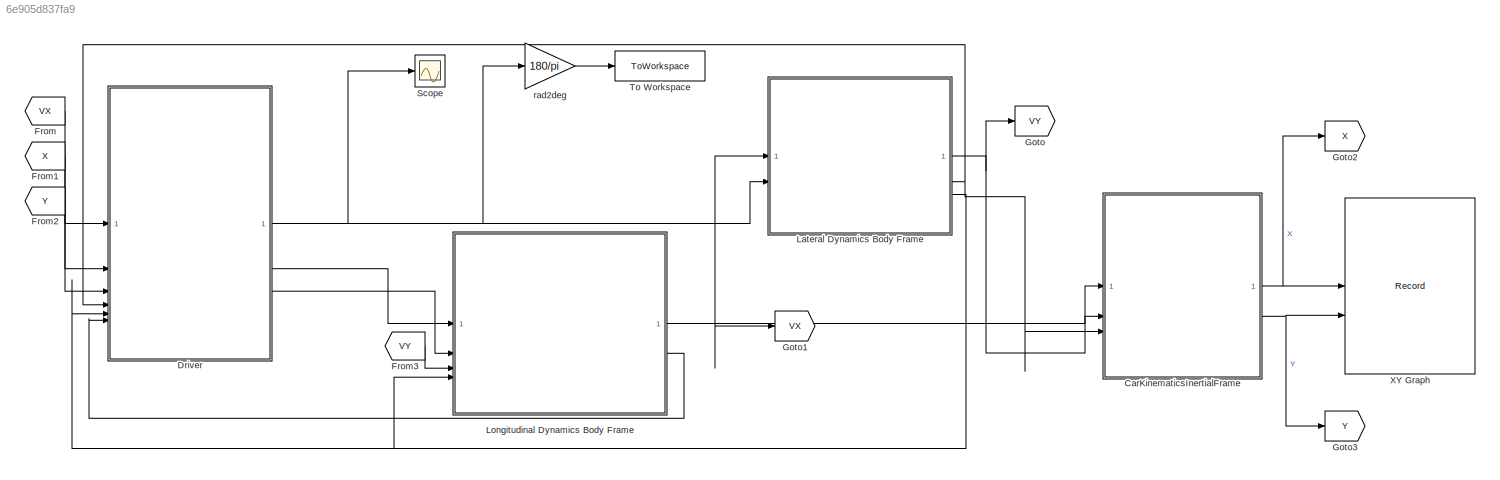
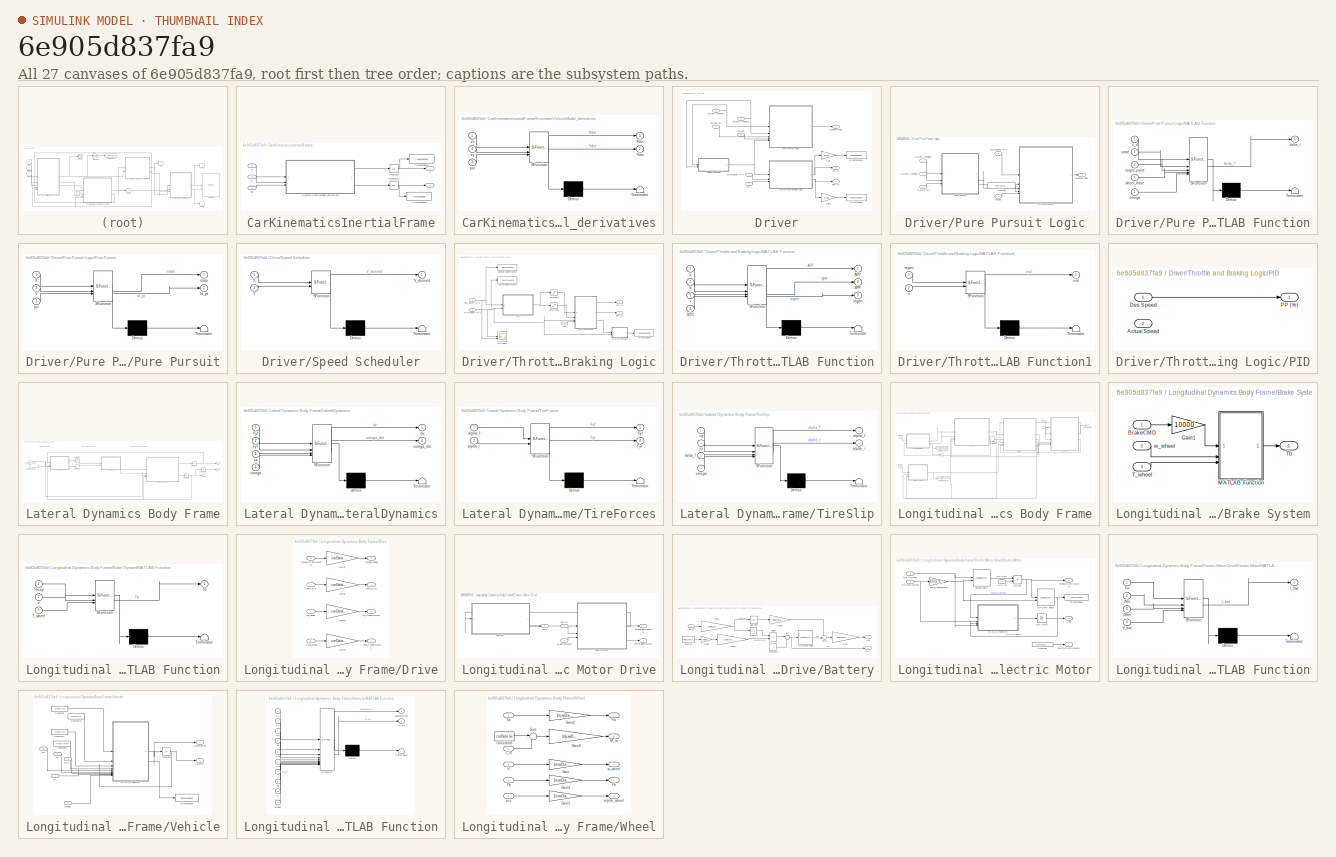
[diagram: thumbnail index - all 27 canvases of the model, root first then tree order]
MODEL slx_6e905d837fa9
KIND model
CONFIG AbsTol = auto
CONFIG EnableMultiTasking = off
CONFIG FixedStep = auto
CONFIG MaxStep = auto
CONFIG MinStep = auto
CONFIG RelTol = 1e-3
CONFIG SampleTimeConstraint = Unconstrained
CONFIG SolverName = VariableStepAuto
CONFIG StartTime = 0.0
CONFIG StopTime = 10.0
BLOCK [SubSystem] CarKinematicsInertialFrame
BLOCK [Integrator] CarKinematicsInertialFrame/Integrator
  InitialCondition = carData.init.X0
BLOCK [Integrator] CarKinematicsInertialFrame/Integrator1
  InitialCondition = carData.init.Y0
BLOCK [SubSystem] CarKinematicsInertialFrame/KinematicVehicleModel_derivatives
  ErrorFcn = Stateflow.Translate.translate
  PermitHierarchicalResolution = ExplicitOnly
  SFBlockType = MATLAB Function
  TreatAsAtomicUnit = on
BLOCK [Demux] CarKinematicsInertialFrame/KinematicVehicleModel_derivatives/ Demux 
  Outputs = 1
BLOCK [S-Function] CarKinematicsInertialFrame/KinematicVehicleModel_derivatives/ SFunction 
  EnableBusSupport = on
  FunctionName = sf_sfun
  PortCounts = [3 3]
  SFcnIsStateOwnerBlock = off
  SFunctionDeploymentMode = off
  Tag = Stateflow S-Function 6
BLOCK [Terminator] CarKinematicsInertialFrame/KinematicVehicleModel_derivatives/ Terminator 
BLOCK [Outport] CarKinematicsInertialFrame/KinematicVehicleModel_derivatives/Xdot
BLOCK [Outport] CarKinematicsInertialFrame/KinematicVehicleModel_derivatives/Ydot
  Port = 2
BLOCK [Inport] CarKinematicsInertialFrame/KinematicVehicleModel_derivatives/psi
  Port = 3
BLOCK [Inport] CarKinematicsInertialFrame/KinematicVehicleModel_derivatives/vx
BLOCK [Inport] CarKinematicsInertialFrame/KinematicVehicleModel_derivatives/vy
  Port = 2
BLOCK [ToWorkspace] CarKinematicsInertialFrame/To Workspace
  FixptAsFi = on
  MaxDataPoints = inf
  SampleTime = -1
  SaveFormat = Timeseries
  VariableName = X
BLOCK [ToWorkspace] CarKinematicsInertialFrame/To Workspace1
  FixptAsFi = on
  MaxDataPoints = inf
  SampleTime = -1
  SaveFormat = Timeseries
  VariableName = Y
BLOCK [Outport] CarKinematicsInertialFrame/X
BLOCK [Outport] CarKinematicsInertialFrame/Y
  Port = 2
BLOCK [Inport] CarKinematicsInertialFrame/psi
  Port = 3
BLOCK [Inport] CarKinematicsInertialFrame/vx
BLOCK [Inport] CarKinematicsInertialFrame/vy
  Port = 2
BLOCK [SubSystem] Driver
BLOCK [Outport] Driver/APP (%)
  Port = 2
BLOCK [Inport] Driver/Actual Speed (m//s)
BLOCK [Outport] Driver/BPP (%)
  Port = 3
BLOCK [Inport] Driver/Current Psi
  Port = 4
BLOCK [Inport] Driver/Current X Position
  Port = 2
BLOCK [Inport] Driver/Current Y Position
  Port = 3
BLOCK [Gain] Driver/Gain
  Gain = 1/100
BLOCK [Gain] Driver/Gain1
  Gain = 1/100
BLOCK [Inport] Driver/Omega
  Port = 5
BLOCK [SubSystem] Driver/Pure Pursuit Logic
BLOCK [Inport] Driver/Pure Pursuit Logic/Actual Speed (m//s)
  Port = 5
BLOCK [Constant] Driver/Pure Pursuit Logic/Constant
  Value = carData.lr + carData.lf
BLOCK [Inport] Driver/Pure Pursuit Logic/Current Psi
  Port = 3
BLOCK [Inport] Driver/Pure Pursuit Logic/Current X Position
BLOCK [Inport] Driver/Pure Pursuit Logic/Current Y Position
  Port = 2
BLOCK [SubSystem] Driver/Pure Pursuit Logic/MATLAB Function
  ErrorFcn = Stateflow.Translate.translate
  PermitHierarchicalResolution = ExplicitOnly
  SFBlockType = MATLAB Function
  TreatAsAtomicUnit = on
BLOCK [Demux] Driver/Pure Pursuit Logic/MATLAB Function/ Demux 
  Outputs = 1
BLOCK [S-Function] Driver/Pure Pursuit Logic/MATLAB Function/ SFunction 
  EnableBusSupport = off
  FunctionName = sf_sfun
  PortCounts = [5 2]
  SFcnIsStateOwnerBlock = off
  SFunctionDeploymentMode = off
  Tag = Stateflow S-Function 5
BLOCK [Terminator] Driver/Pure Pursuit Logic/MATLAB Function/ Terminator 
BLOCK [Outport] Driver/Pure Pursuit Logic/MATLAB Function/delta_f
BLOCK [Inport] Driver/Pure Pursuit Logic/MATLAB Function/omega
  Port = 5
BLOCK [Inport] Driver/Pure Pursuit Logic/MATLAB Function/state
  Port = 2
BLOCK [Inport] Driver/Pure Pursuit Logic/MATLAB Function/target_point
  Port = 3
BLOCK [Inport] Driver/Pure Pursuit Logic/MATLAB Function/v_d
BLOCK [Inport] Driver/Pure Pursuit Logic/MATLAB Function/wheel_base
  Port = 4
BLOCK [SubSystem] Driver/Pure Pursuit Logic/Pure Pursuit
  ErrorFcn = Stateflow.Translate.translate
  PermitHierarchicalResolution = ExplicitOnly
  SFBlockType = MATLAB Function
  TreatAsAtomicUnit = on
BLOCK [Demux] Driver/Pure Pursuit Logic/Pure Pursuit/ Demux 
  Outputs = 1
BLOCK [S-Function] Driver/Pure Pursuit Logic/Pure Pursuit/ SFunction 
  EnableBusSupport = off
  FunctionName = sf_sfun
  PortCounts = [3 3]
  SFcnIsStateOwnerBlock = off
  SFunctionDeploymentMode = off
  Tag = Stateflow S-Function 4
BLOCK [Terminator] Driver/Pure Pursuit Logic/Pure Pursuit/ Terminator 
BLOCK [Outport] Driver/Pure Pursuit Logic/Pure Pursuit/Id_pt
  Port = 2
BLOCK [Inport] Driver/Pure Pursuit Logic/Pure Pursuit/X
BLOCK [Inport] Driver/Pure Pursuit Logic/Pure Pursuit/Y
  Port = 2
BLOCK [Inport] Driver/Pure Pursuit Logic/Pure Pursuit/psi
  Port = 3
BLOCK [Outport] Driver/Pure Pursuit Logic/Pure Pursuit/state
BLOCK [Outport] Driver/Pure Pursuit Logic/Steering Angle
BLOCK [Inport] Driver/Pure Pursuit Logic/omega
  Port = 4
BLOCK [Inport] Driver/SOC
  Port = 6
BLOCK [SubSystem] Driver/Speed Scheduler
  ErrorFcn = Stateflow.Translate.translate
  PermitHierarchicalResolution = ExplicitOnly
  SFBlockType = MATLAB Function
  TreatAsAtomicUnit = on
BLOCK [Demux] Driver/Speed Scheduler/ Demux 
  Outputs = 1
BLOCK [S-Function] Driver/Speed Scheduler/ SFunction 
  EnableBusSupport = off
  FunctionName = sf_sfun
  PortCounts = [2 2]
  SFcnIsStateOwnerBlock = off
  SFunctionDeploymentMode = off
  Tag = Stateflow S-Function 2
BLOCK [Terminator] Driver/Speed Scheduler/ Terminator 
BLOCK [Outport] Driver/Speed Scheduler/V_desired
BLOCK [Inport] Driver/Speed Scheduler/X
BLOCK [Inport] Driver/Speed Scheduler/Y
  Port = 2
BLOCK [Outport] Driver/Steering Angle
BLOCK [SubSystem] Driver/Throttle and Braking Logic
BLOCK [Outport] Driver/Throttle and Braking Logic/APP (%)
BLOCK [Inport] Driver/Throttle and Braking Logic/Actual Speed (m//s)
  Port = 2
BLOCK [Outport] Driver/Throttle and Braking Logic/BPP (%)
  Port = 2
BLOCK [Inport] Driver/Throttle and Braking Logic/Des Speed (m//s)
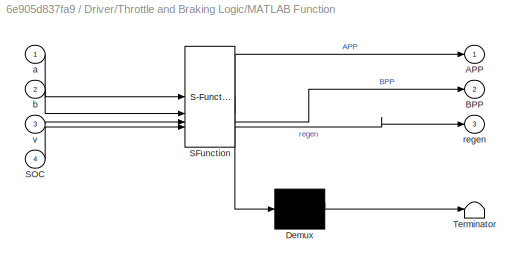
BLOCK [SubSystem] Driver/Throttle and Braking Logic/MATLAB Function
  ErrorFcn = Stateflow.Translate.translate
  PermitHierarchicalResolution = ExplicitOnly
  SFBlockType = MATLAB Function
  TreatAsAtomicUnit = on
BLOCK [Demux] Driver/Throttle and Braking Logic/MATLAB Function/ Demux 
  Outputs = 1
BLOCK [S-Function] Driver/Throttle and Braking Logic/MATLAB Function/ SFunction 
  EnableBusSupport = off
  FunctionName = sf_sfun
  PortCounts = [4 4]
  SFcnIsStateOwnerBlock = off
  SFunctionDeploymentMode = off
  Tag = Stateflow S-Function 1
BLOCK [Terminator] Driver/Throttle and Braking Logic/MATLAB Function/ Terminator 
BLOCK [Outport] Driver/Throttle and Braking Logic/MATLAB Function/APP
BLOCK [Outport] Driver/Throttle and Braking Logic/MATLAB Function/BPP
  Port = 2
BLOCK [Inport] Driver/Throttle and Braking Logic/MATLAB Function/SOC
  Port = 4
BLOCK [Inport] Driver/Throttle and Braking Logic/MATLAB Function/a
BLOCK [Inport] Driver/Throttle and Braking Logic/MATLAB Function/b
  Port = 2
BLOCK [Outport] Driver/Throttle and Braking Logic/MATLAB Function/regen
  Port = 3
BLOCK [Inport] Driver/Throttle and Braking Logic/MATLAB Function/v
  Port = 3
BLOCK [SubSystem] Driver/Throttle and Braking Logic/MATLAB Function1
  ErrorFcn = Stateflow.Translate.translate
  PermitHierarchicalResolution = ExplicitOnly
  SFBlockType = MATLAB Function
  TreatAsAtomicUnit = on
BLOCK [Demux] Driver/Throttle and Braking Logic/MATLAB Function1/ Demux 
  Outputs = 1
BLOCK [S-Function] Driver/Throttle and Braking Logic/MATLAB Function1/ SFunction 
  EnableBusSupport = off
  FunctionName = sf_sfun
  PortCounts = [2 2]
  SFcnIsStateOwnerBlock = off
  SFunctionDeploymentMode = off
  Tag = Stateflow S-Function 3
BLOCK [Terminator] Driver/Throttle and Braking Logic/MATLAB Function1/ Terminator 
BLOCK [Inport] Driver/Throttle and Braking Logic/MATLAB Function1/regen
BLOCK [Inport] Driver/Throttle and Braking Logic/MATLAB Function1/v
  Port = 2
BLOCK [Outport] Driver/Throttle and Braking Logic/MATLAB Function1/viol
BLOCK [SubSystem] Driver/Throttle and Braking Logic/PID
BLOCK [Scope] Driver/Throttle and Braking Logic/PID Tuning
  Floating = off
  NumInputPorts = 2
  ScopeSpecificationString = Simulink.scopes.TimeScopeBlockCfg('CurrentConfiguration', extmgr.ConfigurationSet(extmgr.Configuration('Core','General UI',true),extmgr.Configuration('Core','Source UI',true),extmgr.Configuration('Sources','WiredSimulink',true,'DataLoggingVariableName','ScopeData1'),extmgr.Configuration('Visuals','Time Domain',true),extmgr.Configuration('Tools','Plot Navigation',true),extmgr.Configuration('Tools',...<+40ch>
BLOCK [Inport] Driver/Throttle and Braking Logic/PID/Actual Speed
  Port = 2
BLOCK [Inport] Driver/Throttle and Braking Logic/PID/Des Speed
BLOCK [Outport] Driver/Throttle and Braking Logic/PID/PP (%)
BLOCK [Inport] Driver/Throttle and Braking Logic/SOC
  Port = 3
BLOCK [Saturate] Driver/Throttle and Braking Logic/Saturation
  LowerLimit = 0
  UpperLimit = 1
BLOCK [Saturate] Driver/Throttle and Braking Logic/Saturation1
  LowerLimit = -1
  UpperLimit = 0
BLOCK [ToWorkspace] Driver/Throttle and Braking Logic/To Workspace
  FixptAsFi = on
  MaxDataPoints = inf
  SampleTime = -1
  SaveFormat = Timeseries
  VariableName = brake
BLOCK [ToWorkspace] Driver/Throttle and Braking Logic/actual speed output
  FixptAsFi = on
  MaxDataPoints = inf
  SampleTime = -1
  SaveFormat = Timeseries
  VariableName = veh_speed
BLOCK [ToWorkspace] Driver/Throttle and Braking Logic/desired speed output
  FixptAsFi = on
  MaxDataPoints = inf
  SampleTime = -1
  SaveFormat = Timeseries
  VariableName = veh_speed_desd
BLOCK [ToWorkspace] Driver/To Workspace
  FixptAsFi = on
  MaxDataPoints = inf
  SampleTime = -1
  SaveFormat = Timeseries
  VariableName = beta
BLOCK [ToWorkspace] Driver/To Workspace1
  FixptAsFi = on
  MaxDataPoints = inf
  SampleTime = -1
  SaveFormat = Timeseries
  VariableName = alpha
BLOCK [From] From
  GotoTag = VX
BLOCK [From] From1
  GotoTag = X
BLOCK [From] From2
  GotoTag = Y
BLOCK [From] From3
  GotoTag = VY
BLOCK [Goto] Goto
  GotoTag = VY
BLOCK [Goto] Goto1
  GotoTag = VX
BLOCK [Goto] Goto2
  GotoTag = X
BLOCK [Goto] Goto3
  GotoTag = Y
BLOCK [SubSystem] Lateral Dynamics Body Frame
BLOCK [Inport] Lateral Dynamics Body Frame/Desired X Velocity (m//s)
BLOCK [Integrator] Lateral Dynamics Body Frame/Integrator
  InitialCondition = carData.init.vy0
BLOCK [Integrator] Lateral Dynamics Body Frame/Integrator1
  InitialCondition = carData.init.omega0
BLOCK [Integrator] Lateral Dynamics Body Frame/Integrator2
  InitialCondition = carData.init.psi0
BLOCK [SubSystem] Lateral Dynamics Body Frame/LateralDynamics
  ErrorFcn = Stateflow.Translate.translate
  PermitHierarchicalResolution = ExplicitOnly
  SFBlockType = MATLAB Function
  TreatAsAtomicUnit = on
BLOCK [Demux] Lateral Dynamics Body Frame/LateralDynamics/ Demux 
  Outputs = 1
BLOCK [S-Function] Lateral Dynamics Body Frame/LateralDynamics/ SFunction 
  EnableBusSupport = on
  FunctionName = sf_sfun
  Parameters = obj
  PortCounts = [4 3]
  SFcnIsStateOwnerBlock = off
  SFunctionDeploymentMode = off
  Tag = Stateflow S-Function 10
BLOCK [Terminator] Lateral Dynamics Body Frame/LateralDynamics/ Terminator 
BLOCK [Inport] Lateral Dynamics Body Frame/LateralDynamics/Fyf
BLOCK [Inport] Lateral Dynamics Body Frame/LateralDynamics/Fyr
  Port = 2
BLOCK [Outport] Lateral Dynamics Body Frame/LateralDynamics/ay
BLOCK [Inport] Lateral Dynamics Body Frame/LateralDynamics/omega
  Port = 4
BLOCK [Outport] Lateral Dynamics Body Frame/LateralDynamics/omega_dot
  Port = 2
BLOCK [Inport] Lateral Dynamics Body Frame/LateralDynamics/vx
  Port = 3
BLOCK [Saturate] Lateral Dynamics Body Frame/Saturation
  LowerLimit = -carData.maxAlpha
  UpperLimit = carData.maxAlpha
BLOCK [Saturate] Lateral Dynamics Body Frame/Saturation1
  LowerLimit = -carData.maxAlpha
  UpperLimit = carData.maxAlpha
BLOCK [Inport] Lateral Dynamics Body Frame/Steering Angle
  Port = 2
BLOCK [SubSystem] Lateral Dynamics Body Frame/TireForces
  ErrorFcn = Stateflow.Translate.translate
  PermitHierarchicalResolution = ExplicitOnly
  SFBlockType = MATLAB Function
  TreatAsAtomicUnit = on
BLOCK [Demux] Lateral Dynamics Body Frame/TireForces/ Demux 
  Outputs = 1
BLOCK [S-Function] Lateral Dynamics Body Frame/TireForces/ SFunction 
  EnableBusSupport = on
  FunctionName = sf_sfun
  Parameters = obj
  PortCounts = [2 3]
  SFcnIsStateOwnerBlock = off
  SFunctionDeploymentMode = off
  Tag = Stateflow S-Function 11
BLOCK [Terminator] Lateral Dynamics Body Frame/TireForces/ Terminator 
BLOCK [Outport] Lateral Dynamics Body Frame/TireForces/Fyf
BLOCK [Outport] Lateral Dynamics Body Frame/TireForces/Fyr
  Port = 2
BLOCK [Inport] Lateral Dynamics Body Frame/TireForces/alpha_f
BLOCK [Inport] Lateral Dynamics Body Frame/TireForces/alpha_r
  Port = 2
BLOCK [SubSystem] Lateral Dynamics Body Frame/TireSlip
  ErrorFcn = Stateflow.Translate.translate
  PermitHierarchicalResolution = ExplicitOnly
  SFBlockType = MATLAB Function
  TreatAsAtomicUnit = on
BLOCK [Demux] Lateral Dynamics Body Frame/TireSlip/ Demux 
  Outputs = 1
BLOCK [S-Function] Lateral Dynamics Body Frame/TireSlip/ SFunction 
  EnableBusSupport = on
  FunctionName = sf_sfun
  Parameters = obj
  PortCounts = [4 3]
  SFcnIsStateOwnerBlock = off
  SFunctionDeploymentMode = off
  Tag = Stateflow S-Function 12
BLOCK [Terminator] Lateral Dynamics Body Frame/TireSlip/ Terminator 
BLOCK [Outport] Lateral Dynamics Body Frame/TireSlip/alpha_f
BLOCK [Outport] Lateral Dynamics Body Frame/TireSlip/alpha_r
  Port = 2
BLOCK [Inport] Lateral Dynamics Body Frame/TireSlip/delta_f
  Port = 3
BLOCK [Inport] Lateral Dynamics Body Frame/TireSlip/omega
  Port = 4
BLOCK [Inport] Lateral Dynamics Body Frame/TireSlip/vx
  Port = 2
BLOCK [Inport] Lateral Dynamics Body Frame/TireSlip/vy
BLOCK [Outport] Lateral Dynamics Body Frame/omega
  Port = 3
BLOCK [Outport] Lateral Dynamics Body Frame/psi
  Port = 2
BLOCK [Outport] Lateral Dynamics Body Frame/vy
BLOCK [SubSystem] Longitudinal Dynamics Body Frame
BLOCK [Inport] Longitudinal Dynamics Body Frame/APP (%)
BLOCK [Inport] Longitudinal Dynamics Body Frame/BPP (%)
  Port = 2
BLOCK [SubSystem] Longitudinal Dynamics Body Frame/Brake System
BLOCK [Inport] Longitudinal Dynamics Body Frame/Brake System/BrakeCMD 
BLOCK [Gain] Longitudinal Dynamics Body Frame/Brake System/Gain1
  Gain = 10000
BLOCK [SubSystem] Longitudinal Dynamics Body Frame/Brake System/MATLAB Function
  ErrorFcn = Stateflow.Translate.translate
  PermitHierarchicalResolution = ExplicitOnly
  SFBlockType = MATLAB Function
  TreatAsAtomicUnit = on
BLOCK [Demux] Longitudinal Dynamics Body Frame/Brake System/MATLAB Function/ Demux 
  Outputs = 1
BLOCK [S-Function] Longitudinal Dynamics Body Frame/Brake System/MATLAB Function/ SFunction 
  EnableBusSupport = on
  FunctionName = sf_sfun
  PortCounts = [3 2]
  SFcnIsStateOwnerBlock = off
  SFunctionDeploymentMode = off
  Tag = Stateflow S-Function 8
BLOCK [Terminator] Longitudinal Dynamics Body Frame/Brake System/MATLAB Function/ Terminator 
BLOCK [Inport] Longitudinal Dynamics Body Frame/Brake System/MATLAB Function/T_wheel
  Port = 3
BLOCK [Outport] Longitudinal Dynamics Body Frame/Brake System/MATLAB Function/Tb
BLOCK [Inport] Longitudinal Dynamics Body Frame/Brake System/MATLAB Function/Tbcap
BLOCK [Inport] Longitudinal Dynamics Body Frame/Brake System/MATLAB Function/v
  Port = 2
BLOCK [Inport] Longitudinal Dynamics Body Frame/Brake System/T_wheel
  Port = 3
BLOCK [Outport] Longitudinal Dynamics Body Frame/Brake System/Tb
  VectorParamsAs1DForOutWhenUnconnected = off
BLOCK [Inport] Longitudinal Dynamics Body Frame/Brake System/w_wheel 
  Port = 2
BLOCK [SubSystem] Longitudinal Dynamics Body Frame/Drive
BLOCK [Outport] Longitudinal Dynamics Body Frame/Drive/Alpha_Transmission
  Port = 4
BLOCK [Inport] Longitudinal Dynamics Body Frame/Drive/Alpha_Wheel
  Port = 4
BLOCK [Gain] Longitudinal Dynamics Body Frame/Drive/Gain1
  Gain = carData.FDG
BLOCK [Gain] Longitudinal Dynamics Body Frame/Drive/Gain2
  Gain = carData.FDG^2
BLOCK [Gain] Longitudinal Dynamics Body Frame/Drive/Gain3
  Gain = carData.FDG
BLOCK [Gain] Longitudinal Dynamics Body Frame/Drive/Gain4
  Gain = carData.FDG
BLOCK [Outport] Longitudinal Dynamics Body Frame/Drive/Inerta_Out
  NameLocation = top
  Port = 2
BLOCK [Inport] Longitudinal Dynamics Body Frame/Drive/Inertia_In
  Port = 2
BLOCK [Inport] Longitudinal Dynamics Body Frame/Drive/Torque_ElectricMotor
BLOCK [Outport] Longitudinal Dynamics Body Frame/Drive/Torque_Wheel
BLOCK [Outport] Longitudinal Dynamics Body Frame/Drive/W_Transmission
  Port = 3
BLOCK [Inport] Longitudinal Dynamics Body Frame/Drive/W_Wheel
  Port = 3
BLOCK [SubSystem] Longitudinal Dynamics Body Frame/Electric Motor Drive
BLOCK [Inport] Longitudinal Dynamics Body Frame/Electric Motor Drive/APP (%)
BLOCK [SubSystem] Longitudinal Dynamics Body Frame/Electric Motor Drive/Battery
BLOCK [Constant] Longitudinal Dynamics Body Frame/Electric Motor Drive/Battery/Constant
  Value = batData.C
BLOCK [Constant] Longitudinal Dynamics Body Frame/Electric Motor Drive/Battery/Constant1
BLOCK [Product] Longitudinal Dynamics Body Frame/Electric Motor Drive/Battery/Divide
  Inputs = */
BLOCK [Gain] Longitudinal Dynamics Body Frame/Electric Motor Drive/Battery/Gain
  Gain = 1/batData.numParallel
BLOCK [Gain] Longitudinal Dynamics Body Frame/Electric Motor Drive/Battery/Gain1
  Gain = 3600
BLOCK [Gain] Longitudinal Dynamics Body Frame/Electric Motor Drive/Battery/Gain2
  Gain = 1/batData.numParallel
BLOCK [Gain] Longitudinal Dynamics Body Frame/Electric Motor Drive/Battery/Gain3
  Gain = batData.Rint
BLOCK [Gain] Longitudinal Dynamics Body Frame/Electric Motor Drive/Battery/Gain4
  Gain = batData.numSeries
BLOCK [Inport] Longitudinal Dynamics Body Frame/Electric Motor Drive/Battery/I_battery
BLOCK [Integrator] Longitudinal Dynamics Body Frame/Electric Motor Drive/Battery/Integrator
BLOCK [Outport] Longitudinal Dynamics Body Frame/Electric Motor Drive/Battery/SOC
  Port = 2
BLOCK [Sum] Longitudinal Dynamics Body Frame/Electric Motor Drive/Battery/Sum
  Inputs = |-+
BLOCK [Sum] Longitudinal Dynamics Body Frame/Electric Motor Drive/Battery/Sum1
  Inputs = -+|
BLOCK [UnitDelay] Longitudinal Dynamics Body Frame/Electric Motor Drive/Battery/Unit Delay
  HasFrameUpgradeWarning = on
  SampleTime = -1
BLOCK [Outport] Longitudinal Dynamics Body Frame/Electric Motor Drive/Battery/V_bat
BLOCK [Lookup_n-D] Longitudinal Dynamics Body Frame/Electric Motor Drive/Battery/n-D Lookup Table
  BreakpointsForDimension1 = batData.SOC
  BreakpointsForDimension3 = [5, 7]
  InputPortMap = u0
  InternalRulePriority = Speed
  NumberOfTableDimensions = 1
  RndMeth = Simplest
  Table = batData.OCV
BLOCK [SubSystem] Longitudinal Dynamics Body Frame/Electric Motor Drive/Electric Motor
BLOCK [Inport] Longitudinal Dynamics Body Frame/Electric Motor Drive/Electric Motor/APP (%)
  Port = 2
BLOCK [Inport] Longitudinal Dynamics Body Frame/Electric Motor Drive/Electric Motor/Bat Voltage
BLOCK [Constant] Longitudinal Dynamics Body Frame/Electric Motor Drive/Electric Motor/Constant
  Value = motorData.Inertia
BLOCK [Product] Longitudinal Dynamics Body Frame/Electric Motor Drive/Electric Motor/Divide
  Inputs = **
BLOCK [Lookup_n-D] Longitudinal Dynamics Body Frame/Electric Motor Drive/Electric Motor/Efficiency Table
  BreakpointsForDimension1 = motorData.eta_torque
  BreakpointsForDimension2 = motorData.eta_speed
  BreakpointsForDimension3 = [5, 7]
  ExtrapMethod = Clip
  InputPortMap = u0,u1
  InternalRulePriority = Speed
  RndMeth = Simplest
  Table = motorData.eta_val
  UseLastTableValue = on
BLOCK [Outport] Longitudinal Dynamics Body Frame/Electric Motor Drive/Electric Motor/I_bat
BLOCK [Outport] Longitudinal Dynamics Body Frame/Electric Motor Drive/Electric Motor/Inertia_ElectricMotor
  Port = 3
BLOCK [SubSystem] Longitudinal Dynamics Body Frame/Electric Motor Drive/Electric Motor/MATLAB Function
  ErrorFcn = Stateflow.Translate.translate
  PermitHierarchicalResolution = ExplicitOnly
  SFBlockType = MATLAB Function
  TreatAsAtomicUnit = on
BLOCK [Demux] Longitudinal Dynamics Body Frame/Electric Motor Drive/Electric Motor/MATLAB Function/ Demux 
  Outputs = 1
BLOCK [S-Function] Longitudinal Dynamics Body Frame/Electric Motor Drive/Electric Motor/MATLAB Function/ SFunction 
  EnableBusSupport = on
  FunctionName = sf_sfun
  PortCounts = [4 2]
  SFcnIsStateOwnerBlock = off
  SFunctionDeploymentMode = off
  Tag = Stateflow S-Function 7
BLOCK [Terminator] Longitudinal Dynamics Body Frame/Electric Motor Drive/Electric Motor/MATLAB Function/ Terminator 
BLOCK [Inport] Longitudinal Dynamics Body Frame/Electric Motor Drive/Electric Motor/MATLAB Function/Effm
  Port = 3
BLOCK [Outport] Longitudinal Dynamics Body Frame/Electric Motor Drive/Electric Motor/MATLAB Function/I_bat
BLOCK [Inport] Longitudinal Dynamics Body Frame/Electric Motor Drive/Electric Motor/MATLAB Function/Tm
BLOCK [Inport] Longitudinal Dynamics Body Frame/Electric Motor Drive/Electric Motor/MATLAB Function/V_bat
  Port = 4
BLOCK [Inport] Longitudinal Dynamics Body Frame/Electric Motor Drive/Electric Motor/MATLAB Function/Wm
  Port = 2
BLOCK [Gain] Longitudinal Dynamics Body Frame/Electric Motor Drive/Electric Motor/RPM conversion
  Gain = 60/(2*pi)
BLOCK [ToWorkspace] Longitudinal Dynamics Body Frame/Electric Motor Drive/Electric Motor/To Workspace
  FixptAsFi = on
  MaxDataPoints = inf
  SampleTime = -1
  SaveFormat = Timeseries
  VariableName = efficiency_motor
BLOCK [Lookup_n-D] Longitudinal Dynamics Body Frame/Electric Motor Drive/Electric Motor/Torque Table
  BreakpointsForDimension1 = motorData.vbus
  BreakpointsForDimension2 = motorData.rpm
  BreakpointsForDimension3 = [5, 7]
  ExtrapMethod = Clip
  InputPortMap = u0,u1
  InternalRulePriority = Speed
  RndMeth = Simplest
  Table = motorData.maxtorque
  UseLastTableValue = on
BLOCK [Outport] Longitudinal Dynamics Body Frame/Electric Motor Drive/Electric Motor/Torque_ElectricMotor
  Port = 2
BLOCK [UnitDelay] Longitudinal Dynamics Body Frame/Electric Motor Drive/Electric Motor/Unit Delay
  HasFrameUpgradeWarning = on
  SampleTime = -1
BLOCK [Inport] Longitudinal Dynamics Body Frame/Electric Motor Drive/Electric Motor/W_ElectricMotor
  Port = 3
BLOCK [Outport] Longitudinal Dynamics Body Frame/Electric Motor Drive/Inertia_ElectricMotor
  Port = 2
BLOCK [Outport] Longitudinal Dynamics Body Frame/Electric Motor Drive/SOC
  Port = 3
BLOCK [Outport] Longitudinal Dynamics Body Frame/Electric Motor Drive/Torque_ElectricMotor
BLOCK [Inport] Longitudinal Dynamics Body Frame/Electric Motor Drive/W_ElectricMotor
  Port = 2
BLOCK [Inport] Longitudinal Dynamics Body Frame/Omega
  Port = 4
BLOCK [Outport] Longitudinal Dynamics Body Frame/SOC
  Port = 2
BLOCK [Terminator] Longitudinal Dynamics Body Frame/Terminator
BLOCK [ToWorkspace] Longitudinal Dynamics Body Frame/To Workspace
  FixptAsFi = on
  MaxDataPoints = inf
  SampleTime = -1
  SaveFormat = Timeseries
  VariableName = SOC
BLOCK [ToWorkspace] Longitudinal Dynamics Body Frame/To Workspace1
  FixptAsFi = on
  MaxDataPoints = inf
  SampleTime = -1
  SaveFormat = Timeseries
  VariableName = brake_torque
BLOCK [SubSystem] Longitudinal Dynamics Body Frame/Vehicle
BLOCK [Outport] Longitudinal Dynamics Body Frame/Vehicle/Acceleration
  Port = 2
BLOCK [Constant] Longitudinal Dynamics Body Frame/Vehicle/Constant
  Value = carData.C0
BLOCK [Constant] Longitudinal Dynamics Body Frame/Vehicle/Constant1
  Value = carData.C1
BLOCK [Constant] Longitudinal Dynamics Body Frame/Vehicle/Constant2
  Value = carData.C2
BLOCK [Constant] Longitudinal Dynamics Body Frame/Vehicle/Constant3
  Value = carData.Mass
BLOCK [Inport] Longitudinal Dynamics Body Frame/Vehicle/Fb
  Port = 4
BLOCK [Inport] Longitudinal Dynamics Body Frame/Vehicle/Fw 
  Port = 3
BLOCK [Integrator] Longitudinal Dynamics Body Frame/Vehicle/Integrator
  LimitOutput = on
  LowerSaturationLimit = 0
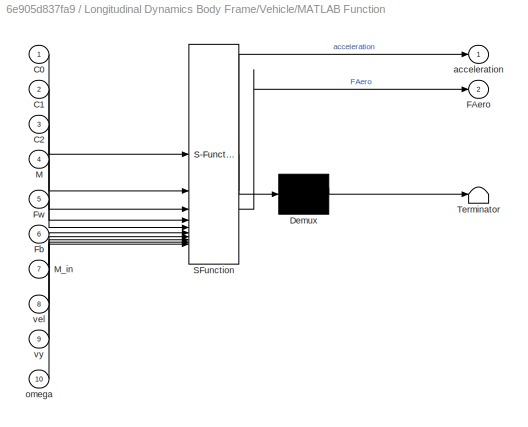
BLOCK [SubSystem] Longitudinal Dynamics Body Frame/Vehicle/MATLAB Function
  ErrorFcn = Stateflow.Translate.translate
  PermitHierarchicalResolution = ExplicitOnly
  SFBlockType = MATLAB Function
  TreatAsAtomicUnit = on
BLOCK [Demux] Longitudinal Dynamics Body Frame/Vehicle/MATLAB Function/ Demux 
  Outputs = 1
BLOCK [S-Function] Longitudinal Dynamics Body Frame/Vehicle/MATLAB Function/ SFunction 
  EnableBusSupport = on
  FunctionName = sf_sfun
  PortCounts = [10 3]
  SFcnIsStateOwnerBlock = off
  SFunctionDeploymentMode = off
  Tag = Stateflow S-Function 9
BLOCK [Terminator] Longitudinal Dynamics Body Frame/Vehicle/MATLAB Function/ Terminator 
BLOCK [Inport] Longitudinal Dynamics Body Frame/Vehicle/MATLAB Function/C0
BLOCK [Inport] Longitudinal Dynamics Body Frame/Vehicle/MATLAB Function/C1
  Port = 2
BLOCK [Inport] Longitudinal Dynamics Body Frame/Vehicle/MATLAB Function/C2
  Port = 3
BLOCK [Outport] Longitudinal Dynamics Body Frame/Vehicle/MATLAB Function/FAero
  Port = 2
BLOCK [Inport] Longitudinal Dynamics Body Frame/Vehicle/MATLAB Function/Fb
  Port = 6
BLOCK [Inport] Longitudinal Dynamics Body Frame/Vehicle/MATLAB Function/Fw
  Port = 5
BLOCK [Inport] Longitudinal Dynamics Body Frame/Vehicle/MATLAB Function/M
  Port = 4
BLOCK [Inport] Longitudinal Dynamics Body Frame/Vehicle/MATLAB Function/M_in
  Port = 7
BLOCK [Outport] Longitudinal Dynamics Body Frame/Vehicle/MATLAB Function/acceleration
  VectorParamsAs1DForOutWhenUnconnected = off
BLOCK [Inport] Longitudinal Dynamics Body Frame/Vehicle/MATLAB Function/omega
  Port = 10
BLOCK [Inport] Longitudinal Dynamics Body Frame/Vehicle/MATLAB Function/vel
  Port = 8
BLOCK [Inport] Longitudinal Dynamics Body Frame/Vehicle/MATLAB Function/vy
  Port = 9
BLOCK [Inport] Longitudinal Dynamics Body Frame/Vehicle/M_in 
  Port = 5
BLOCK [ToWorkspace] Longitudinal Dynamics Body Frame/Vehicle/To Workspace
  FixptAsFi = on
  MaxDataPoints = inf
  SampleTime = -1
  SaveFormat = Timeseries
  VariableName = FAero
BLOCK [Outport] Longitudinal Dynamics Body Frame/Vehicle/Velocity 
  VectorParamsAs1DForOutWhenUnconnected = off
BLOCK [Inport] Longitudinal Dynamics Body Frame/Vehicle/omega
  Port = 2
BLOCK [Inport] Longitudinal Dynamics Body Frame/Vehicle/vy
BLOCK [Outport] Longitudinal Dynamics Body Frame/Velocity X (m//s)
BLOCK [Inport] Longitudinal Dynamics Body Frame/Vy
  Port = 3
BLOCK [SubSystem] Longitudinal Dynamics Body Frame/Wheel
BLOCK [Constant] Longitudinal Dynamics Body Frame/Wheel/Constant6
  Value = carData.Iw
BLOCK [Outport] Longitudinal Dynamics Body Frame/Wheel/Fb
  Port = 2
BLOCK [Outport] Longitudinal Dynamics Body Frame/Wheel/Fw
BLOCK [Gain] Longitudinal Dynamics Body Frame/Wheel/Gain
  Gain = 1/carData.r
BLOCK [Gain] Longitudinal Dynamics Body Frame/Wheel/Gain1
  Gain = 1/carData.r
BLOCK [Gain] Longitudinal Dynamics Body Frame/Wheel/Gain2
  Gain = 1/carData.r
BLOCK [Gain] Longitudinal Dynamics Body Frame/Wheel/Gain3
  Gain = 1/(carData.r*carData.r)
BLOCK [Gain] Longitudinal Dynamics Body Frame/Wheel/Gain4
  Gain = 1/carData.r
BLOCK [Inport] Longitudinal Dynamics Body Frame/Wheel/I_in
  Port = 2
BLOCK [Outport] Longitudinal Dynamics Body Frame/Wheel/M_in
  Port = 3
BLOCK [Sum] Longitudinal Dynamics Body Frame/Wheel/Sum
  Inputs = |++
BLOCK [Inport] Longitudinal Dynamics Body Frame/Wheel/Tb
  Port = 4
BLOCK [Inport] Longitudinal Dynamics Body Frame/Wheel/Tw
BLOCK [Inport] Longitudinal Dynamics Body Frame/Wheel/V
  Port = 3
BLOCK [Inport] Longitudinal Dynamics Body Frame/Wheel/acc
  Port = 5
BLOCK [Outport] Longitudinal Dynamics Body Frame/Wheel/alpha_wheel
  Port = 5
BLOCK [Outport] Longitudinal Dynamics Body Frame/Wheel/w_wheel
  Port = 4
BLOCK [Scope] Scope
  Floating = off
  NumInputPorts = 1
  ScopeSpecificationString = Simulink.scopes.TimeScopeBlockCfg('CurrentConfiguration', extmgr.ConfigurationSet(extmgr.Configuration('Core','General UI',true),extmgr.Configuration('Core','Source UI',true),extmgr.Configuration('Sources','WiredSimulink',true),extmgr.Configuration('Visuals','Time Domain',true),extmgr.Configuration('Tools','Plot Navigation',true),extmgr.Configuration('Tools','Measurements',true)),'Version','2023b'...<+1ch>
BLOCK [ToWorkspace] To Workspace
  FixptAsFi = on
  MaxDataPoints = inf
  SampleTime = -1
  SaveFormat = Timeseries
  VariableName = delta
BLOCK [Record] XY Graph
  CompatibilityTag = XY
  FileSettingsInternal = {"entries":[{"content":{"excelSettings":{"content":{},"type":"Streamout.ExcelSettings"}},"type":"Streamout.FileSettingStorage","uuid":""}],"packageUris":["http:\/\/schema.mathworks.com\/mf0\/streamout_blocks\/R2020a"],"version":"1.0"}
  Layout = [1 1]
  SignalsInternal = {"entries":[{"content":{"signals":[{"content":{"blockPath":[],"dimensions":[1],"domain":"","lineColor":"#a2142f","plots":[1],"port":1,"signalID":70,"signalName":"XY Graph:1"},"type":"RecordBlkView.Signal","uuid":""},{"content":{"blockPath":[],"dimensions":[1],"domain":"","lineColor":"#139fff","plots":[1],"port":2,"signalID":73,"signalName":"XY Graph:2"},"type":"RecordBlkView.Signal","uuid":""}]},"...<+142ch>
  VisualizationBindings = {"xyplotplugin":{"info":[{"series":[{"bindingParametersList":[{"parameter":"X-Axis","signalID":70,"signalName":"XY Graph:1"},{"parameter":"Y-Axis","signalID":73,"signalName":"XY Graph:2"}],"seriesID":10699}],"subplotID":1}]}}
BLOCK [Gain] rad2deg
  Gain = 180/pi
ANNOTATION Lateral Dynamics Body Frame: Lateral Dynamic Calculations
ANNOTATION Lateral Dynamics Body Frame: Tire Force Calculation
ANNOTATION Lateral Dynamics Body Frame: Tire Slip Calculation
NET CarKinematicsInertialFrame/Integrator1:1 -> CarKinematicsInertialFrame/To Workspace1:1, CarKinematicsInertialFrame/Y:1
NET CarKinematicsInertialFrame/Integrator:1 -> CarKinematicsInertialFrame/To Workspace:1, CarKinematicsInertialFrame/X:1
LINE CarKinematicsInertialFrame/KinematicVehicleModel_derivatives:1 -> CarKinematicsInertialFrame/Integrator:1
LINE CarKinematicsInertialFrame/KinematicVehicleModel_derivatives:2 -> CarKinematicsInertialFrame/Integrator1:1
LINE CarKinematicsInertialFrame/psi:1 -> CarKinematicsInertialFrame/KinematicVehicleModel_derivatives:3
LINE CarKinematicsInertialFrame/vx:1 -> CarKinematicsInertialFrame/KinematicVehicleModel_derivatives:1
LINE CarKinematicsInertialFrame/vy:1 -> CarKinematicsInertialFrame/KinematicVehicleModel_derivatives:2
NET CarKinematicsInertialFrame:1 -> Goto2:1, XY Graph:1
NET CarKinematicsInertialFrame:2 -> Goto3:1, XY Graph:2
LINE Driver/Actual Speed (m//s):1 -> Driver/Throttle and Braking Logic:2
LINE Driver/Current Psi:1 -> Driver/Pure Pursuit Logic:3
NET Driver/Current X Position:1 -> Driver/Pure Pursuit Logic:1, Driver/Speed Scheduler:1
NET Driver/Current Y Position:1 -> Driver/Pure Pursuit Logic:2, Driver/Speed Scheduler:2
LINE Driver/Gain1:1 -> Driver/To Workspace:1
LINE Driver/Gain:1 -> Driver/To Workspace1:1
LINE Driver/Omega:1 -> Driver/Pure Pursuit Logic:4
LINE Driver/Pure Pursuit Logic/Actual Speed (m//s):1 -> Driver/Pure Pursuit Logic/MATLAB Function:1
LINE Driver/Pure Pursuit Logic/Constant:1 -> Driver/Pure Pursuit Logic/MATLAB Function:4
LINE Driver/Pure Pursuit Logic/Current Psi:1 -> Driver/Pure Pursuit Logic/Pure Pursuit:3
LINE Driver/Pure Pursuit Logic/Current X Position:1 -> Driver/Pure Pursuit Logic/Pure Pursuit:1
LINE Driver/Pure Pursuit Logic/Current Y Position:1 -> Driver/Pure Pursuit Logic/Pure Pursuit:2
LINE Driver/Pure Pursuit Logic/MATLAB Function:1 -> Driver/Pure Pursuit Logic/Steering Angle:1
LINE Driver/Pure Pursuit Logic/Pure Pursuit:1 -> Driver/Pure Pursuit Logic/MATLAB Function:2
LINE Driver/Pure Pursuit Logic/Pure Pursuit:2 -> Driver/Pure Pursuit Logic/MATLAB Function:3
LINE Driver/Pure Pursuit Logic/omega:1 -> Driver/Pure Pursuit Logic/MATLAB Function:5
LINE Driver/Pure Pursuit Logic:1 -> Driver/Steering Angle:1
LINE Driver/SOC:1 -> Driver/Throttle and Braking Logic:3
NET Driver/Speed Scheduler:1 -> Driver/Pure Pursuit Logic:5, Driver/Throttle and Braking Logic:1
NET Driver/Throttle and Braking Logic/Actual Speed (m//s):1 -> Driver/Throttle and Braking Logic/MATLAB Function1:2, Driver/Throttle and Braking Logic/MATLAB Function:3, Driver/Throttle and Braking Logic/PID Tuning:1, Driver/Throttle and Braking Logic/PID:2, Driver/Throttle and Braking Logic/actual speed output:1
NET Driver/Throttle and Braking Logic/Des Speed (m//s):1 -> Driver/Throttle and Braking Logic/PID Tuning:2, Driver/Throttle and Braking Logic/PID:1, Driver/Throttle and Braking Logic/desired speed output:1
LINE Driver/Throttle and Braking Logic/MATLAB Function1:1 -> Driver/Throttle and Braking Logic/To Workspace:1
LINE Driver/Throttle and Braking Logic/MATLAB Function:1 -> Driver/Throttle and Braking Logic/APP (%):1
LINE Driver/Throttle and Braking Logic/MATLAB Function:2 -> Driver/Throttle and Braking Logic/BPP (%):1
LINE Driver/Throttle and Braking Logic/MATLAB Function:3 -> Driver/Throttle and Braking Logic/MATLAB Function1:1
LINE Driver/Throttle and Braking Logic/PID/Des Speed:1 -> Driver/Throttle and Braking Logic/PID/PP (%):1
NET Driver/Throttle and Braking Logic/PID:1 -> Driver/Throttle and Braking Logic/Saturation1:1, Driver/Throttle and Braking Logic/Saturation:1
LINE Driver/Throttle and Braking Logic/SOC:1 -> Driver/Throttle and Braking Logic/MATLAB Function:4
LINE Driver/Throttle and Braking Logic/Saturation1:1 -> Driver/Throttle and Braking Logic/MATLAB Function:2
LINE Driver/Throttle and Braking Logic/Saturation:1 -> Driver/Throttle and Braking Logic/MATLAB Function:1
NET Driver/Throttle and Braking Logic:1 -> Driver/APP (%):1, Driver/Gain:1
NET Driver/Throttle and Braking Logic:2 -> Driver/BPP (%):1, Driver/Gain1:1
NET Driver:1 -> Lateral Dynamics Body Frame:2, Scope:1, rad2deg:1
LINE Driver:2 -> Longitudinal Dynamics Body Frame:1
LINE Driver:3 -> Longitudinal Dynamics Body Frame:2
LINE From1:1 -> Driver:2
LINE From2:1 -> Driver:3
LINE From3:1 -> Longitudinal Dynamics Body Frame:3
LINE From:1 -> Driver:1
NET Lateral Dynamics Body Frame/Desired X Velocity (m//s):1 -> Lateral Dynamics Body Frame/LateralDynamics:3, Lateral Dynamics Body Frame/TireSlip:2
NET Lateral Dynamics Body Frame/Integrator1:1 -> Lateral Dynamics Body Frame/Integrator2:1, Lateral Dynamics Body Frame/LateralDynamics:4, Lateral Dynamics Body Frame/TireSlip:4, Lateral Dynamics Body Frame/omega:1
LINE Lateral Dynamics Body Frame/Integrator2:1 -> Lateral Dynamics Body Frame/psi:1
NET Lateral Dynamics Body Frame/Integrator:1 -> Lateral Dynamics Body Frame/TireSlip:1, Lateral Dynamics Body Frame/vy:1
LINE Lateral Dynamics Body Frame/LateralDynamics:1 -> Lateral Dynamics Body Frame/Integrator:1
LINE Lateral Dynamics Body Frame/LateralDynamics:2 -> Lateral Dynamics Body Frame/Integrator1:1
LINE Lateral Dynamics Body Frame/Saturation1:1 -> Lateral Dynamics Body Frame/TireForces:2
LINE Lateral Dynamics Body Frame/Saturation:1 -> Lateral Dynamics Body Frame/TireForces:1
LINE Lateral Dynamics Body Frame/Steering Angle:1 -> Lateral Dynamics Body Frame/TireSlip:3
LINE Lateral Dynamics Body Frame/TireForces:1 -> Lateral Dynamics Body Frame/LateralDynamics:1
LINE Lateral Dynamics Body Frame/TireForces:2 -> Lateral Dynamics Body Frame/LateralDynamics:2
LINE Lateral Dynamics Body Frame/TireSlip:1 -> Lateral Dynamics Body Frame/Saturation:1
LINE Lateral Dynamics Body Frame/TireSlip:2 -> Lateral Dynamics Body Frame/Saturation1:1
NET Lateral Dynamics Body Frame:1 -> CarKinematicsInertialFrame:2, Goto:1
NET Lateral Dynamics Body Frame:2 -> CarKinematicsInertialFrame:3, Driver:4
NET Lateral Dynamics Body Frame:3 -> Driver:5, Longitudinal Dynamics Body Frame:4
LINE Longitudinal Dynamics Body Frame/APP (%):1 -> Longitudinal Dynamics Body Frame/Electric Motor Drive:1
LINE Longitudinal Dynamics Body Frame/BPP (%):1 -> Longitudinal Dynamics Body Frame/Brake System:1
LINE Longitudinal Dynamics Body Frame/Brake System/BrakeCMD :1 -> Longitudinal Dynamics Body Frame/Brake System/Gain1:1
LINE Longitudinal Dynamics Body Frame/Brake System/Gain1:1 -> Longitudinal Dynamics Body Frame/Brake System/MATLAB Function:1
LINE Longitudinal Dynamics Body Frame/Brake System/MATLAB Function:1 -> Longitudinal Dynamics Body Frame/Brake System/Tb:1
LINE Longitudinal Dynamics Body Frame/Brake System/T_wheel:1 -> Longitudinal Dynamics Body Frame/Brake System/MATLAB Function:3
LINE Longitudinal Dynamics Body Frame/Brake System/w_wheel :1 -> Longitudinal Dynamics Body Frame/Brake System/MATLAB Function:2
NET Longitudinal Dynamics Body Frame/Brake System:1 -> Longitudinal Dynamics Body Frame/To Workspace1:1, Longitudinal Dynamics Body Frame/Wheel:4
LINE Longitudinal Dynamics Body Frame/Drive/Alpha_Wheel:1 -> Longitudinal Dynamics Body Frame/Drive/Gain4:1
LINE Longitudinal Dynamics Body Frame/Drive/Gain1:1 -> Longitudinal Dynamics Body Frame/Drive/Torque_Wheel:1
LINE Longitudinal Dynamics Body Frame/Drive/Gain2:1 -> Longitudinal Dynamics Body Frame/Drive/Inerta_Out:1
LINE Longitudinal Dynamics Body Frame/Drive/Gain3:1 -> Longitudinal Dynamics Body Frame/Drive/W_Transmission:1
LINE Longitudinal Dynamics Body Frame/Drive/Gain4:1 -> Longitudinal Dynamics Body Frame/Drive/Alpha_Transmission:1
LINE Longitudinal Dynamics Body Frame/Drive/Inertia_In:1 -> Longitudinal Dynamics Body Frame/Drive/Gain2:1
LINE Longitudinal Dynamics Body Frame/Drive/Torque_ElectricMotor:1 -> Longitudinal Dynamics Body Frame/Drive/Gain1:1
LINE Longitudinal Dynamics Body Frame/Drive/W_Wheel:1 -> Longitudinal Dynamics Body Frame/Drive/Gain3:1
NET Longitudinal Dynamics Body Frame/Drive:1 -> Longitudinal Dynamics Body Frame/Brake System:3, Longitudinal Dynamics Body Frame/Wheel:1
LINE Longitudinal Dynamics Body Frame/Drive:2 -> Longitudinal Dynamics Body Frame/Wheel:2
LINE Longitudinal Dynamics Body Frame/Drive:3 -> Longitudinal Dynamics Body Frame/Electric Motor Drive:2
LINE Longitudinal Dynamics Body Frame/Drive:4 -> Longitudinal Dynamics Body Frame/Terminator:1
LINE Longitudinal Dynamics Body Frame/Electric Motor Drive/APP (%):1 -> Longitudinal Dynamics Body Frame/Electric Motor Drive/Electric Motor:2
LINE Longitudinal Dynamics Body Frame/Electric Motor Drive/Battery/Constant1:1 -> Longitudinal Dynamics Body Frame/Electric Motor Drive/Battery/Sum:2
LINE Longitudinal Dynamics Body Frame/Electric Motor Drive/Battery/Constant:1 -> Longitudinal Dynamics Body Frame/Electric Motor Drive/Battery/Gain1:1
LINE Longitudinal Dynamics Body Frame/Electric Motor Drive/Battery/Divide:1 -> Longitudinal Dynamics Body Frame/Electric Motor Drive/Battery/Sum:1
LINE Longitudinal Dynamics Body Frame/Electric Motor Drive/Battery/Gain1:1 -> Longitudinal Dynamics Body Frame/Electric Motor Drive/Battery/Gain2:1
LINE Longitudinal Dynamics Body Frame/Electric Motor Drive/Battery/Gain2:1 -> Longitudinal Dynamics Body Frame/Electric Motor Drive/Battery/Divide:2
LINE Longitudinal Dynamics Body Frame/Electric Motor Drive/Battery/Gain3:1 -> Longitudinal Dynamics Body Frame/Electric Motor Drive/Battery/Sum1:1
LINE Longitudinal Dynamics Body Frame/Electric Motor Drive/Battery/Gain4:1 -> Longitudinal Dynamics Body Frame/Electric Motor Drive/Battery/V_bat:1
NET Longitudinal Dynamics Body Frame/Electric Motor Drive/Battery/Gain:1 -> Longitudinal Dynamics Body Frame/Electric Motor Drive/Battery/Integrator:1, Longitudinal Dynamics Body Frame/Electric Motor Drive/Battery/Unit Delay:1
LINE Longitudinal Dynamics Body Frame/Electric Motor Drive/Battery/I_battery:1 -> Longitudinal Dynamics Body Frame/Electric Motor Drive/Battery/Gain:1
LINE Longitudinal Dynamics Body Frame/Electric Motor Drive/Battery/Integrator:1 -> Longitudinal Dynamics Body Frame/Electric Motor Drive/Battery/Divide:1
LINE Longitudinal Dynamics Body Frame/Electric Motor Drive/Battery/Sum1:1 -> Longitudinal Dynamics Body Frame/Electric Motor Drive/Battery/Gain4:1
NET Longitudinal Dynamics Body Frame/Electric Motor Drive/Battery/Sum:1 -> Longitudinal Dynamics Body Frame/Electric Motor Drive/Battery/SOC:1, Longitudinal Dynamics Body Frame/Electric Motor Drive/Battery/n-D Lookup Table:1
LINE Longitudinal Dynamics Body Frame/Electric Motor Drive/Battery/Unit Delay:1 -> Longitudinal Dynamics Body Frame/Electric Motor Drive/Battery/Gain3:1
LINE Longitudinal Dynamics Body Frame/Electric Motor Drive/Battery/n-D Lookup Table:1 -> Longitudinal Dynamics Body Frame/Electric Motor Drive/Battery/Sum1:2
LINE Longitudinal Dynamics Body Frame/Electric Motor Drive/Battery:1 -> Longitudinal Dynamics Body Frame/Electric Motor Drive/Electric Motor:1
LINE Longitudinal Dynamics Body Frame/Electric Motor Drive/Battery:2 -> Longitudinal Dynamics Body Frame/Electric Motor Drive/SOC:1
LINE Longitudinal Dynamics Body Frame/Electric Motor Drive/Electric Motor/APP (%):1 -> Longitudinal Dynamics Body Frame/Electric Motor Drive/Electric Motor/Divide:2
NET Longitudinal Dynamics Body Frame/Electric Motor Drive/Electric Motor/Bat Voltage:1 -> Longitudinal Dynamics Body Frame/Electric Motor Drive/Electric Motor/MATLAB Function:4, Longitudinal Dynamics Body Frame/Electric Motor Drive/Electric Motor/Torque Table:1
LINE Longitudinal Dynamics Body Frame/Electric Motor Drive/Electric Motor/Constant:1 -> Longitudinal Dynamics Body Frame/Electric Motor Drive/Electric Motor/Inertia_ElectricMotor:1
NET Longitudinal Dynamics Body Frame/Electric Motor Drive/Electric Motor/Divide:1 -> Longitudinal Dynamics Body Frame/Electric Motor Drive/Electric Motor/Efficiency Table:1, Longitudinal Dynamics Body Frame/Electric Motor Drive/Electric Motor/MATLAB Function:1, Longitudinal Dynamics Body Frame/Electric Motor Drive/Electric Motor/Torque_ElectricMotor:1
NET Longitudinal Dynamics Body Frame/Electric Motor Drive/Electric Motor/Efficiency Table:1 -> Longitudinal Dynamics Body Frame/Electric Motor Drive/Electric Motor/MATLAB Function:3, Longitudinal Dynamics Body Frame/Electric Motor Drive/Electric Motor/To Workspace:1
LINE Longitudinal Dynamics Body Frame/Electric Motor Drive/Electric Motor/MATLAB Function:1 -> Longitudinal Dynamics Body Frame/Electric Motor Drive/Electric Motor/Unit Delay:1
NET Longitudinal Dynamics Body Frame/Electric Motor Drive/Electric Motor/RPM conversion:1 -> Longitudinal Dynamics Body Frame/Electric Motor Drive/Electric Motor/Efficiency Table:2, Longitudinal Dynamics Body Frame/Electric Motor Drive/Electric Motor/Torque Table:2
LINE Longitudinal Dynamics Body Frame/Electric Motor Drive/Electric Motor/Torque Table:1 -> Longitudinal Dynamics Body Frame/Electric Motor Drive/Electric Motor/Divide:1
LINE Longitudinal Dynamics Body Frame/Electric Motor Drive/Electric Motor/Unit Delay:1 -> Longitudinal Dynamics Body Frame/Electric Motor Drive/Electric Motor/I_bat:1
NET Longitudinal Dynamics Body Frame/Electric Motor Drive/Electric Motor/W_ElectricMotor:1 -> Longitudinal Dynamics Body Frame/Electric Motor Drive/Electric Motor/MATLAB Function:2, Longitudinal Dynamics Body Frame/Electric Motor Drive/Electric Motor/RPM conversion:1
LINE Longitudinal Dynamics Body Frame/Electric Motor Drive/Electric Motor:1 -> Longitudinal Dynamics Body Frame/Electric Motor Drive/Battery:1
LINE Longitudinal Dynamics Body Frame/Electric Motor Drive/Electric Motor:2 -> Longitudinal Dynamics Body Frame/Electric Motor Drive/Torque_ElectricMotor:1
LINE Longitudinal Dynamics Body Frame/Electric Motor Drive/Electric Motor:3 -> Longitudinal Dynamics Body Frame/Electric Motor Drive/Inertia_ElectricMotor:1
LINE Longitudinal Dynamics Body Frame/Electric Motor Drive/W_ElectricMotor:1 -> Longitudinal Dynamics Body Frame/Electric Motor Drive/Electric Motor:3
LINE Longitudinal Dynamics Body Frame/Electric Motor Drive:1 -> Longitudinal Dynamics Body Frame/Drive:1
LINE Longitudinal Dynamics Body Frame/Electric Motor Drive:2 -> Longitudinal Dynamics Body Frame/Drive:2
NET Longitudinal Dynamics Body Frame/Electric Motor Drive:3 -> Longitudinal Dynamics Body Frame/SOC:1, Longitudinal Dynamics Body Frame/To Workspace:1
LINE Longitudinal Dynamics Body Frame/Omega:1 -> Longitudinal Dynamics Body Frame/Vehicle:2
LINE Longitudinal Dynamics Body Frame/Vehicle/Constant1:1 -> Longitudinal Dynamics Body Frame/Vehicle/MATLAB Function:2
LINE Longitudinal Dynamics Body Frame/Vehicle/Constant2:1 -> Longitudinal Dynamics Body Frame/Vehicle/MATLAB Function:3
LINE Longitudinal Dynamics Body Frame/Vehicle/Constant3:1 -> Longitudinal Dynamics Body Frame/Vehicle/MATLAB Function:4
LINE Longitudinal Dynamics Body Frame/Vehicle/Constant:1 -> Longitudinal Dynamics Body Frame/Vehicle/MATLAB Function:1
LINE Longitudinal Dynamics Body Frame/Vehicle/Fb:1 -> Longitudinal Dynamics Body Frame/Vehicle/MATLAB Function:6
LINE Longitudinal Dynamics Body Frame/Vehicle/Fw :1 -> Longitudinal Dynamics Body Frame/Vehicle/MATLAB Function:5
NET Longitudinal Dynamics Body Frame/Vehicle/Integrator:1 -> Longitudinal Dynamics Body Frame/Vehicle/MATLAB Function:8, Longitudinal Dynamics Body Frame/Vehicle/Velocity :1
NET Longitudinal Dynamics Body Frame/Vehicle/MATLAB Function:1 -> Longitudinal Dynamics Body Frame/Vehicle/Acceleration:1, Longitudinal Dynamics Body Frame/Vehicle/Integrator:1
LINE Longitudinal Dynamics Body Frame/Vehicle/MATLAB Function:2 -> Longitudinal Dynamics Body Frame/Vehicle/To Workspace:1
LINE Longitudinal Dynamics Body Frame/Vehicle/M_in :1 -> Longitudinal Dynamics Body Frame/Vehicle/MATLAB Function:7
LINE Longitudinal Dynamics Body Frame/Vehicle/omega:1 -> Longitudinal Dynamics Body Frame/Vehicle/MATLAB Function:10
LINE Longitudinal Dynamics Body Frame/Vehicle/vy:1 -> Longitudinal Dynamics Body Frame/Vehicle/MATLAB Function:9
NET Longitudinal Dynamics Body Frame/Vehicle:1 -> Longitudinal Dynamics Body Frame/Velocity X (m//s):1, Longitudinal Dynamics Body Frame/Wheel:3
LINE Longitudinal Dynamics Body Frame/Vehicle:2 -> Longitudinal Dynamics Body Frame/Wheel:5
LINE Longitudinal Dynamics Body Frame/Vy:1 -> Longitudinal Dynamics Body Frame/Vehicle:1
LINE Longitudinal Dynamics Body Frame/Wheel/Constant6:1 -> Longitudinal Dynamics Body Frame/Wheel/Sum:1
LINE Longitudinal Dynamics Body Frame/Wheel/Gain1:1 -> Longitudinal Dynamics Body Frame/Wheel/alpha_wheel:1
LINE Longitudinal Dynamics Body Frame/Wheel/Gain2:1 -> Longitudinal Dynamics Body Frame/Wheel/Fw:1
LINE Longitudinal Dynamics Body Frame/Wheel/Gain3:1 -> Longitudinal Dynamics Body Frame/Wheel/M_in:1
LINE Longitudinal Dynamics Body Frame/Wheel/Gain4:1 -> Longitudinal Dynamics Body Frame/Wheel/Fb:1
LINE Longitudinal Dynamics Body Frame/Wheel/Gain:1 -> Longitudinal Dynamics Body Frame/Wheel/w_wheel:1
LINE Longitudinal Dynamics Body Frame/Wheel/I_in:1 -> Longitudinal Dynamics Body Frame/Wheel/Sum:2
LINE Longitudinal Dynamics Body Frame/Wheel/Sum:1 -> Longitudinal Dynamics Body Frame/Wheel/Gain3:1
LINE Longitudinal Dynamics Body Frame/Wheel/Tb:1 -> Longitudinal Dynamics Body Frame/Wheel/Gain4:1
LINE Longitudinal Dynamics Body Frame/Wheel/Tw:1 -> Longitudinal Dynamics Body Frame/Wheel/Gain2:1
LINE Longitudinal Dynamics Body Frame/Wheel/V:1 -> Longitudinal Dynamics Body Frame/Wheel/Gain:1
LINE Longitudinal Dynamics Body Frame/Wheel/acc:1 -> Longitudinal Dynamics Body Frame/Wheel/Gain1:1
LINE Longitudinal Dynamics Body Frame/Wheel:1 -> Longitudinal Dynamics Body Frame/Vehicle:3
LINE Longitudinal Dynamics Body Frame/Wheel:2 -> Longitudinal Dynamics Body Frame/Vehicle:4
LINE Longitudinal Dynamics Body Frame/Wheel:3 -> Longitudinal Dynamics Body Frame/Vehicle:5
NET Longitudinal Dynamics Body Frame/Wheel:4 -> Longitudinal Dynamics Body Frame/Brake System:2, Longitudinal Dynamics Body Frame/Drive:3
LINE Longitudinal Dynamics Body Frame/Wheel:5 -> Longitudinal Dynamics Body Frame/Drive:4
NET Longitudinal Dynamics Body Frame:1 -> CarKinematicsInertialFrame:1, Goto1:1, Lateral Dynamics Body Frame:1
LINE Longitudinal Dynamics Body Frame:2 -> Driver:6
LINE rad2deg:1 -> To Workspace:1
note: NET lines group one-source signal fan-out (src -> all destinations, sorted); 1:1 wires keep LINE
CHART Lateral Dynamics Body Frame/LateralDynamics states=1 transitions=1
  STATE_LABEL 'eML_blk_kernel()'
  STATE_LABEL 'SCRIPT:\nfunction [ay, omega_dot] = fcn(Fyf, Fyr, vx, omega, obj)\n\nFy = Fyf + Fyr;\nay = Fy / obj.Mass - omega * vx;\n        \nM  = Fyf * obj.lf - Fyr * obj.lr;        \nomega_dot = M / obj.Inertia;        \n\nend'
CHART Lateral Dynamics Body Frame/TireForces states=1 transitions=1
  STATE_LABEL 'eML_blk_kernel()'
  STATE_LABEL 'SCRIPT:\nfunction [Fyf, Fyr] = fcn(alpha_f, alpha_r, obj)\n\nFyf = min(obj.Fyfmax,obj.Calpha_f * alpha_f);\nFyr = min(obj.Fyrmax, obj.Calpha_r * alpha_r);\nend'
CHART Lateral Dynamics Body Frame/TireSlip states=1 transitions=1
  STATE_LABEL 'eML_blk_kernel()'
  STATE_LABEL 'SCRIPT:\nfunction [alpha_f, alpha_r] = fcn(vy,  vx, delta_f, omega, obj)\n\n\nif abs(vx)> obj.vx_threshold1\n      alpha_f = delta_f - (vy + omega * obj.lf) / vx;\n      alpha_r = - (vy - omega * obj.lr) / vx;\nelse\n      alpha_f = 0;\n      alpha_r = 0;\nend\n\n\n\nend'
CHART Driver/Throttle and Braking Logic/MATLAB Function states=1 transitions=1
  STATE_LABEL 'eML_blk_kernel()'
  STATE_LABEL 'SCRIPT:\nfunction [APP,BPP, regen] = fcn(a, b, v, SOC)\n\nif v < 5\n    regen = 0;\nelseif 5 <= v && v < 25\n    regen = b*(1-0.05);\nend'
CHART Driver/Speed Scheduler states=1 transitions=1
  STATE_LABEL 'eML_blk_kernel()'
  STATE_LABEL 'SCRIPT:\nfunction V_desired = fcn(X, Y)\n\nV_desired = X + Y;\n'
CHART Driver/Throttle and Braking Logic/MATLAB Function1 states=1 transitions=1
  STATE_LABEL 'eML_blk_kernel()'
  STATE_LABEL 'SCRIPT:\nfunction viol = violfcn(regen, v)\n    speed = (3600/1600)*v;\n    if speed < 5\n        regen_vio = 0;\n        if regen == regen_vio\n            viol = 0;\n        else\n            viol = 1;\n        end\n\n    elseif speed == 25\n        regen_vio = 0.95;\n        if regen == regen_vio\n            viol = 0;\n        else\n            viol = 1;\n        end\n\n    elseif v > 25\n        regen_vio = 0.95...<+264ch>'
CHART Driver/Pure Pursuit Logic/Pure Pursuit states=1 transitions=1
  STATE_LABEL 'eML_blk_kernel()'
  STATE_LABEL 'SCRIPT:\nfunction [state, Id_pt]= fcn(X, Y, psi)\n\ny = u;\n'
CHART Driver/Pure Pursuit Logic/MATLAB Function states=1 transitions=1
  STATE_LABEL 'eML_blk_kernel()'
  STATE_LABEL 'SCRIPT:\nfunction delta_f = fcn(v_d, state, target_point, wheel_base, omega)\n\ny = u;\n'
CHART CarKinematicsInertialFrame/KinematicVehicleModel_derivatives states=1 transitions=1
  STATE_LABEL 'eML_blk_kernel()'
  STATE_LABEL 'SCRIPT:\nfunction [Xdot, Ydot] = fcn(vx, vy, psi)\n    temp = TF(psi) * [vx;vy]; \n    Xdot = temp(1);\n    Ydot = temp(2);\n  \nend\n\nfunction y = TF(psi)\n    y = [cos(psi), -sin(psi); sin(psi), cos(psi)];\nend'
CHART Longitudinal Dynamics Body Frame/Electric Motor Drive/Electric Motor/MATLAB Function states=1 transitions=1
  STATE_LABEL 'eML_blk_kernel()'
  STATE_LABEL 'SCRIPT:\nfunction I_bat = fcn(Tm, Wm, Effm, V_bat)\nPm = Tm * Wm;\nSgn_Pm = Pm / (abs(Pm) + 0.001);\nI_bat = ( Pm * (Effm^Sgn_Pm) ) / V_bat;'
CHART Longitudinal Dynamics Body Frame/Brake System/MATLAB Function states=1 transitions=1
  STATE_LABEL 'eML_blk_kernel()'
  STATE_LABEL 'SCRIPT:\nfunction Tb = fcn(Tbcap,v, T_wheel)\n\nif Tbcap == 0\n    Tb = -T_wheel;\nelse\n    Tb = -(Tbcap * (v/(abs(v)+0.001)));\n\nend\n%Tb = Tbcap;\n% GO TO LONGITUDINAL Dynamics SLIDES(slide 13) AND ADD THE INFORMATION HERE:\n% friction on pad =1, geometric = 1\n% brake in locked / un-locked state\n% torque = applied torque coming from wheels (for locked),\n% Alpha_value(brakepercent)X gain(np_max:10000)x si...<+191ch>'
CHART Longitudinal Dynamics Body Frame/Vehicle/MATLAB Function states=1 transitions=1
  STATE_LABEL 'eML_blk_kernel()'
  STATE_LABEL 'SCRIPT:\nfunction [acceleration, FAero]   = vehicle(C0,C1,C2,M,Fw,Fb,M_in,vel,vy,omega)\n\nFAero = C0 + C1*vel + C2*(vel)^2;\nacceleration = ((Fw-Fb)-FAero)/(M+M_in)+vy*omega;\n\nend'
CHART  states=0 transitions=0
CHART  states=0 transitions=0
CHART  states=0 transitions=0
CHART  states=0 transitions=0
CHART  states=0 transitions=0
CHART  states=0 transitions=0
CHART  states=0 transitions=0
CHART  states=0 transitions=0
CHART  states=0 transitions=0
CHART  states=0 transitions=0
CHART  states=0 transitions=0
CHART  states=0 transitions=0
